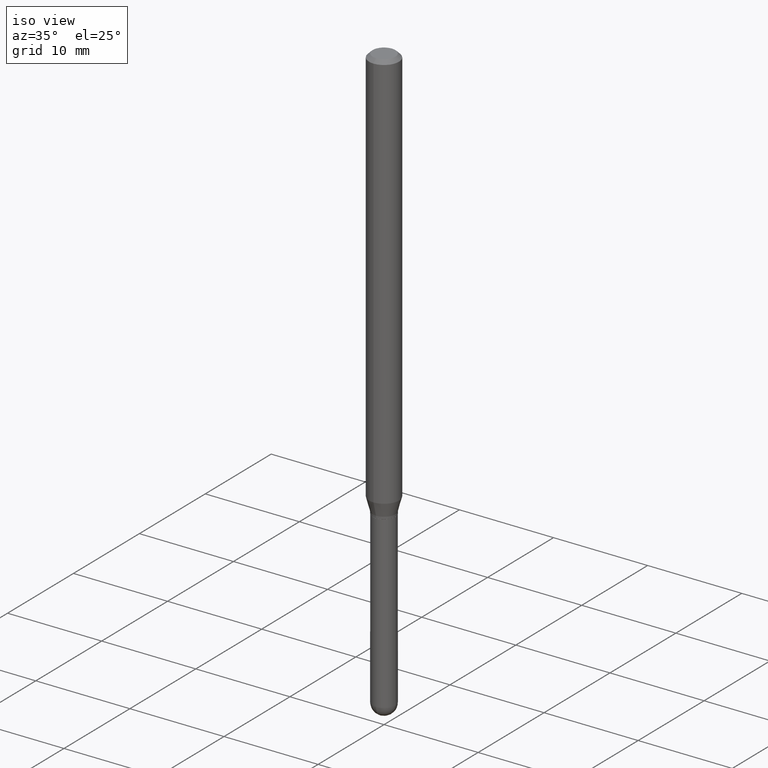
[diagram: clean part render]
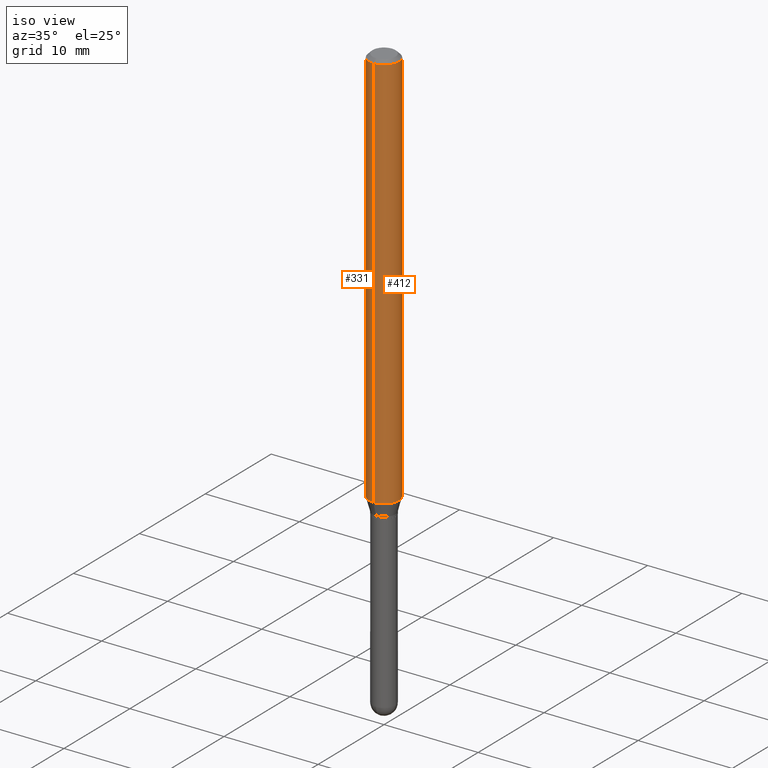
[diagram: same view with one multi-face feature highlighted, each face labeled with its STEP entity id]
A machine part, iso view. The highlighted faces form ONE feature: a constant-radius fillet chain: 2 tangent blend faces with common blend radius 1.5875 mm. The faces share edges in the B-rep.
Their STEP definitions:
[1] entity #412 (Cylinder):
#3 = VERTEX_POINT ( 'NONE', #222 ) ;
#4 = EDGE_CURVE ( 'NONE', #3, #24, #360, .T. ) ;
#16 = VERTEX_POINT ( 'NONE', #214 ) ;
#23 = CYLINDRICAL_SURFACE ( 'NONE', #55, 0.06250000000000000000 ) ;
#24 = VERTEX_POINT ( 'NONE', #300 ) ;
#47 = DIRECTION ( 'NONE',  ( -6.982962677686265922E-15, -1.000000000000000000, 4.370956789862821150E-15 ) ) ;
#54 = ORIENTED_EDGE ( 'NONE', *, *, #115, .F. ) ;
#55 = AXIS2_PLACEMENT_3D ( 'NONE', #105, #192, #59 ) ;
#59 = DIRECTION ( 'NONE',  ( -6.982962677686265922E-15, -1.000000000000000000, 3.491498024606421119E-15 ) ) ;
#88 = ORIENTED_EDGE ( 'NONE', *, *, #4, .T. ) ;
#102 = DIRECTION ( 'NONE',  ( -6.982962677686265922E-15, -1.000000000000000000, 3.483106191921935554E-15 ) ) ;
#104 = ORIENTED_EDGE ( 'NONE', *, *, #368, .T. ) ;
#105 = CARTESIAN_POINT ( 'NONE',  ( 0.000000000000000000, 0.000000000000000000, 0.000000000000000000 ) ) ;
#115 = EDGE_CURVE ( 'NONE', #256, #16, #375, .T. ) ;
#125 = CARTESIAN_POINT ( 'NONE',  ( -4.364351673553916201E-16, -0.06250000000000000000, 2.182186265379013199E-16 ) ) ;
#138 = DIRECTION ( 'NONE',  ( -2.445457154578916466E-29, 3.491498024606421119E-15, 1.000000000000000000 ) ) ;
#140 = EDGE_LOOP ( 'NONE', ( #104, #88, #335, #54 ) ) ;
#180 = CIRCLE ( 'NONE', #433, 0.06250000000000000000 ) ;
#190 = DIRECTION ( 'NONE',  ( -2.445457154578916466E-29, 3.491498024606421119E-15, 1.000000000000000000 ) ) ;
#192 = DIRECTION ( 'NONE',  ( -2.445457154578916466E-29, 3.491498024606421119E-15, 1.000000000000000000 ) ) ;
#202 = CIRCLE ( 'NONE', #279, 0.06250000000000000000 ) ;
#203 = VECTOR ( 'NONE', #278, 39.37007874015748143 ) ;
#214 = CARTESIAN_POINT ( 'NONE',  ( -4.364351673553912750E-16, -0.06250000000000005551, -0.01500000000000011047 ) ) ;
#222 = CARTESIAN_POINT ( 'NONE',  ( 4.440892098501036369E-16, 0.06249999999999418521, -1.674019237886466227 ) ) ;
#237 = VECTOR ( 'NONE', #445, 39.37007874015748143 ) ;
#256 = VERTEX_POINT ( 'NONE', #402 ) ;
#278 = DIRECTION ( 'NONE',  ( -2.445457154578916466E-29, 3.491498024606421514E-15, 1.000000000000000000 ) ) ;
#279 = AXIS2_PLACEMENT_3D ( 'NONE', #320, #138, #47 ) ;
#300 = CARTESIAN_POINT ( 'NONE',  ( 4.440892098501038342E-16, 0.06249999999999995143, -0.01500000000000054588 ) ) ;
#320 = CARTESIAN_POINT ( 'NONE',  ( 4.093742322192203032E-29, -5.844834862233742356E-15, -1.674019237886465783 ) ) ;
#324 = CARTESIAN_POINT ( 'NONE',  ( 4.440892098500625669E-16, 0.06250000000000000000, -2.182186265379013199E-16 ) ) ;
#329 = FACE_OUTER_BOUND ( 'NONE', #140, .T. ) ;
#335 = ORIENTED_EDGE ( 'NONE', *, *, #404, .F. ) ;
#360 = LINE ( 'NONE', #324, #237 ) ;
#368 = EDGE_CURVE ( 'NONE', #256, #3, #202, .T. ) ;
#375 = LINE ( 'NONE', #125, #203 ) ;
#402 = CARTESIAN_POINT ( 'NONE',  ( -4.364351673553505007E-16, -0.06250000000000581479, -1.674019237886465561 ) ) ;
#404 = EDGE_CURVE ( 'NONE', #16, #24, #180, .T. ) ;
#412 = ADVANCED_FACE ( 'NONE', ( #329 ), #23, .T. ) ;
#433 = AXIS2_PLACEMENT_3D ( 'NONE', #484, #190, #102 ) ;
#445 = DIRECTION ( 'NONE',  ( -2.445457154578916466E-29, 3.491498024606421514E-15, 1.000000000000000000 ) ) ;
#484 = CARTESIAN_POINT ( 'NONE',  ( 3.668185731868455291E-31, -5.237247036909746039E-17, -0.01500000000000032904 ) ) ;
[2] entity #331 (Cylinder):
#3 = VERTEX_POINT ( 'NONE', #222 ) ;
#4 = EDGE_CURVE ( 'NONE', #3, #24, #360, .T. ) ;
#16 = VERTEX_POINT ( 'NONE', #214 ) ;
#24 = VERTEX_POINT ( 'NONE', #300 ) ;
#49 = EDGE_CURVE ( 'NONE', #3, #256, #334, .T. ) ;
#52 = DIRECTION ( 'NONE',  ( -2.445457154578916466E-29, 3.491498024606421119E-15, 1.000000000000000000 ) ) ;
#115 = EDGE_CURVE ( 'NONE', #256, #16, #375, .T. ) ;
#125 = CARTESIAN_POINT ( 'NONE',  ( -4.364351673553916201E-16, -0.06250000000000000000, 2.182186265379013199E-16 ) ) ;
#145 = DIRECTION ( 'NONE',  ( -6.982962677686265922E-15, -1.000000000000000000, 4.370956789862821150E-15 ) ) ;
#162 = CARTESIAN_POINT ( 'NONE',  ( 4.093742322192203032E-29, -5.844834862233742356E-15, -1.674019237886465783 ) ) ;
#164 = CIRCLE ( 'NONE', #286, 0.06250000000000000000 ) ;
#187 = DIRECTION ( 'NONE',  ( -2.445457154578916466E-29, 3.491498024606421119E-15, 1.000000000000000000 ) ) ;
#203 = VECTOR ( 'NONE', #278, 39.37007874015748143 ) ;
#214 = CARTESIAN_POINT ( 'NONE',  ( -4.364351673553912750E-16, -0.06250000000000005551, -0.01500000000000011047 ) ) ;
#222 = CARTESIAN_POINT ( 'NONE',  ( 4.440892098501036369E-16, 0.06249999999999418521, -1.674019237886466227 ) ) ;
#237 = VECTOR ( 'NONE', #445, 39.37007874015748143 ) ;
#240 = DIRECTION ( 'NONE',  ( -2.445457154578916466E-29, 3.491498024606421119E-15, 1.000000000000000000 ) ) ;
#242 = EDGE_CURVE ( 'NONE', #24, #16, #164, .T. ) ;
#256 = VERTEX_POINT ( 'NONE', #402 ) ;
#277 = CARTESIAN_POINT ( 'NONE',  ( 3.668185731868455291E-31, -5.237247036909746039E-17, -0.01500000000000032904 ) ) ;
#278 = DIRECTION ( 'NONE',  ( -2.445457154578916466E-29, 3.491498024606421514E-15, 1.000000000000000000 ) ) ;
#280 = EDGE_LOOP ( 'NONE', ( #342, #450, #357, #380 ) ) ;
#285 = CARTESIAN_POINT ( 'NONE',  ( 0.000000000000000000, 0.000000000000000000, 0.000000000000000000 ) ) ;
#286 = AXIS2_PLACEMENT_3D ( 'NONE', #277, #240, #304 ) ;
#287 = DIRECTION ( 'NONE',  ( -6.982962677686265922E-15, -1.000000000000000000, 3.491498024606421119E-15 ) ) ;
#288 = CYLINDRICAL_SURFACE ( 'NONE', #401, 0.06250000000000000000 ) ;
#300 = CARTESIAN_POINT ( 'NONE',  ( 4.440892098501038342E-16, 0.06249999999999995143, -0.01500000000000054588 ) ) ;
#304 = DIRECTION ( 'NONE',  ( -6.982962677686265922E-15, -1.000000000000000000, 3.483106191921935554E-15 ) ) ;
#324 = CARTESIAN_POINT ( 'NONE',  ( 4.440892098500625669E-16, 0.06250000000000000000, -2.182186265379013199E-16 ) ) ;
#331 = ADVANCED_FACE ( 'NONE', ( #392 ), #288, .T. ) ;
#334 = CIRCLE ( 'NONE', #490, 0.06250000000000000000 ) ;
#342 = ORIENTED_EDGE ( 'NONE', *, *, #4, .F. ) ;
#357 = ORIENTED_EDGE ( 'NONE', *, *, #115, .T. ) ;
#360 = LINE ( 'NONE', #324, #237 ) ;
#375 = LINE ( 'NONE', #125, #203 ) ;
#380 = ORIENTED_EDGE ( 'NONE', *, *, #242, .F. ) ;
#392 = FACE_OUTER_BOUND ( 'NONE', #280, .T. ) ;
#401 = AXIS2_PLACEMENT_3D ( 'NONE', #285, #52, #287 ) ;
#402 = CARTESIAN_POINT ( 'NONE',  ( -4.364351673553505007E-16, -0.06250000000000581479, -1.674019237886465561 ) ) ;
#445 = DIRECTION ( 'NONE',  ( -2.445457154578916466E-29, 3.491498024606421514E-15, 1.000000000000000000 ) ) ;
#450 = ORIENTED_EDGE ( 'NONE', *, *, #49, .T. ) ;
#490 = AXIS2_PLACEMENT_3D ( 'NONE', #162, #187, #145 ) ;